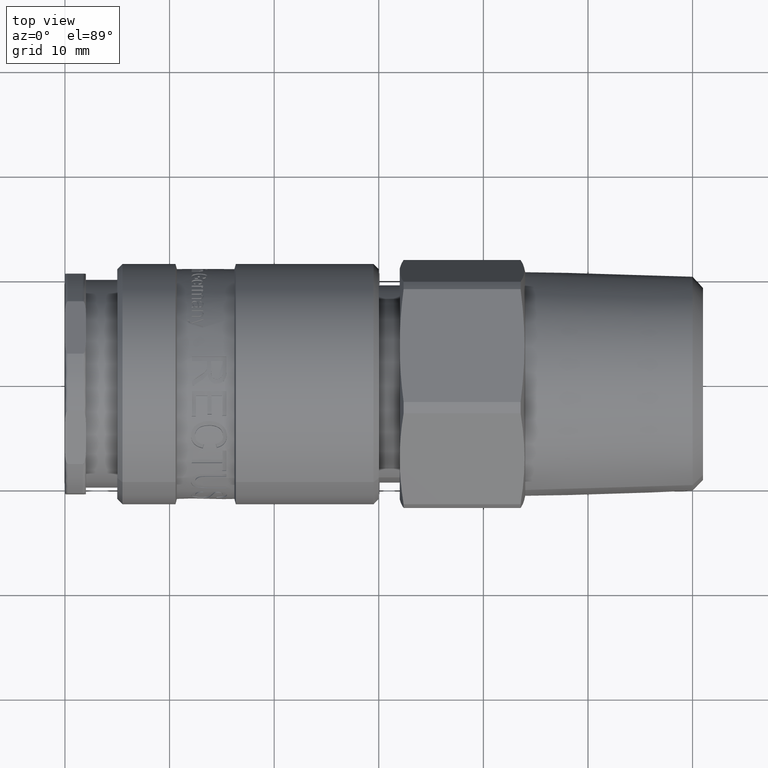
[diagram: clean part render]
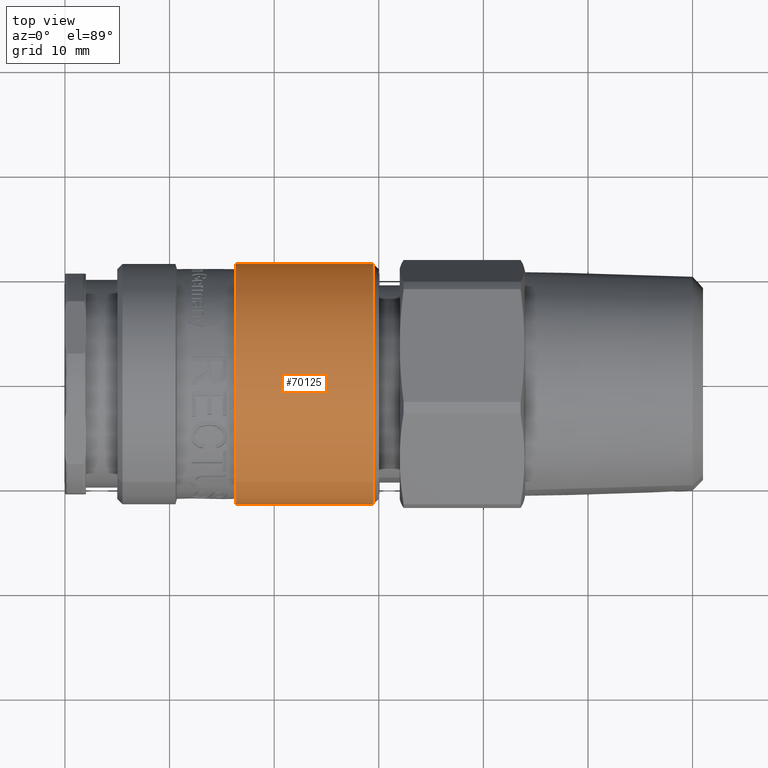
[diagram: same view with one face highlighted and labeled with its STEP entity id]
A machine part, top view. The second image highlights one B-rep face of the part: STEP entity #70125.
In plain terms, the highlighted cylindrical surface (bore or boss wall) has radius 11.5 mm, axis along (1, 0, 0).
Its self-contained STEP definition (entity closure, byte-faithful):
#70083=CARTESIAN_POINT('',(29.5,-9.500442652498442,6.480091774549832));
#70084=VERTEX_POINT('',#70083);
#70085=CARTESIAN_POINT('',(29.5,0.0,0.0));
#70086=DIRECTION('',(1.0,0.0,0.0));
#70087=DIRECTION('',(0.0,0.826125448043343,-0.563486241265203));
#70088=AXIS2_PLACEMENT_3D('',#70085,#70086,#70087);
#70089=CIRCLE('',#70088,11.5);
#70090=EDGE_CURVE('',#70084,#70084,#70089,.T.);
#70106=CARTESIAN_POINT('',(23.166987298107781,0.0,0.0));
#70107=DIRECTION('',(1.0,0.0,0.0));
#70108=DIRECTION('',(0.0,-0.826125448043343,0.563486241265203));
#70109=AXIS2_PLACEMENT_3D('',#70106,#70107,#70108);
#70110=CYLINDRICAL_SURFACE('',#70109,11.500000000000002);
#70111=CARTESIAN_POINT('',(16.333974596215558,-9.500442652498442,6.480091774549833));
#70112=VERTEX_POINT('',#70111);
#70113=CARTESIAN_POINT('',(16.333974596215558,0.0,0.0));
#70114=DIRECTION('',(1.0,0.0,0.0));
#70115=DIRECTION('',(0.0,-0.826125448043343,0.563486241265203));
#70116=AXIS2_PLACEMENT_3D('',#70113,#70114,#70115);
#70117=CIRCLE('',#70116,11.5);
#70118=EDGE_CURVE('',#70112,#70112,#70117,.T.);
#70119=ORIENTED_EDGE('',*,*,#70118,.T.);
#70120=EDGE_LOOP('',(#70119));
#70121=FACE_OUTER_BOUND('',#70120,.T.);
#70122=ORIENTED_EDGE('',*,*,#70090,.F.);
#70123=EDGE_LOOP('',(#70122));
#70124=FACE_BOUND('',#70123,.T.);
#70125=ADVANCED_FACE('',(#70121,#70124),#70110,.T.);